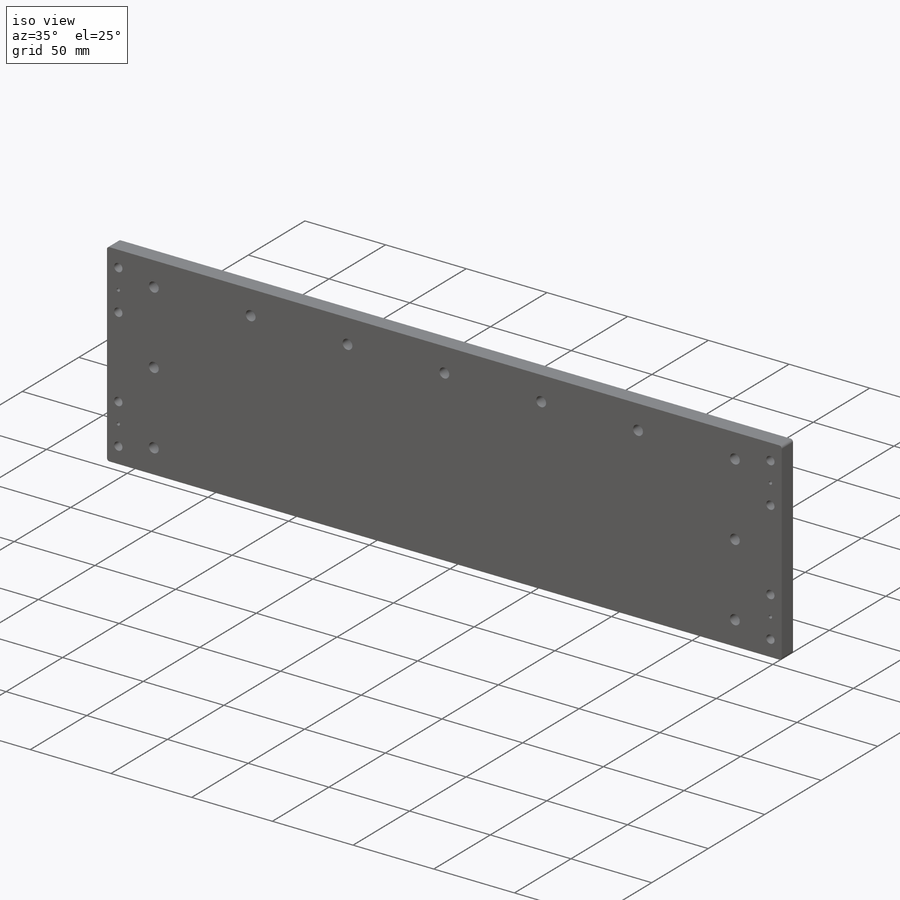
[diagram: iso view]
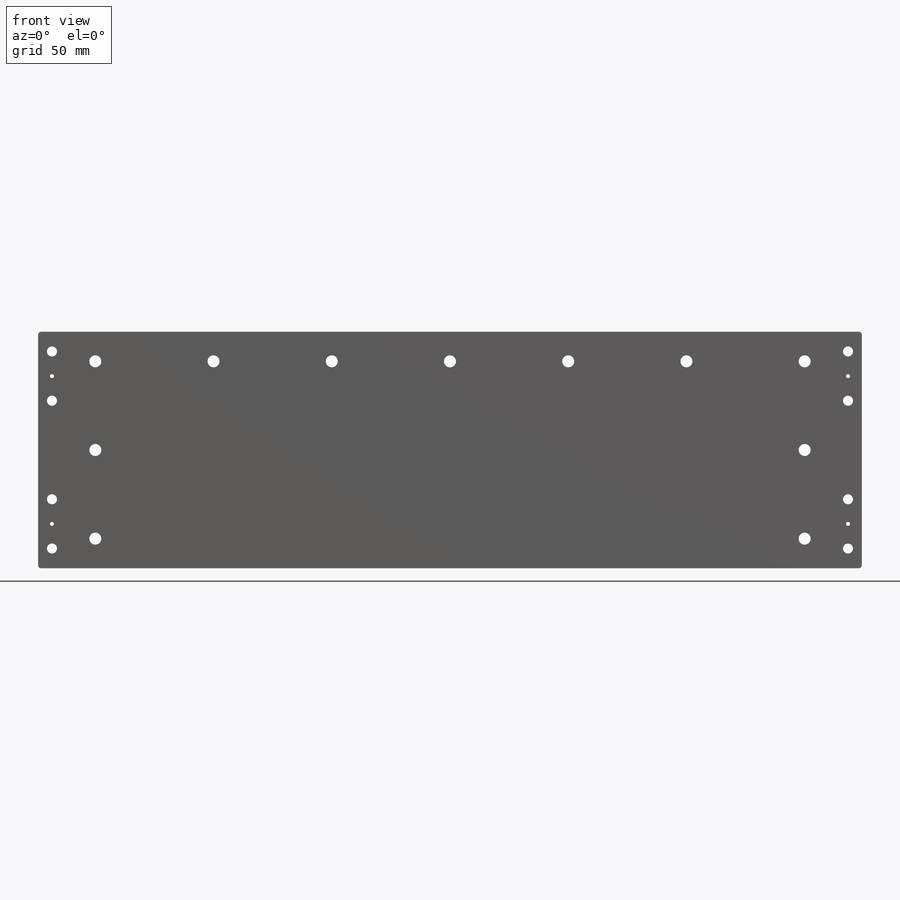
[diagram: front view]
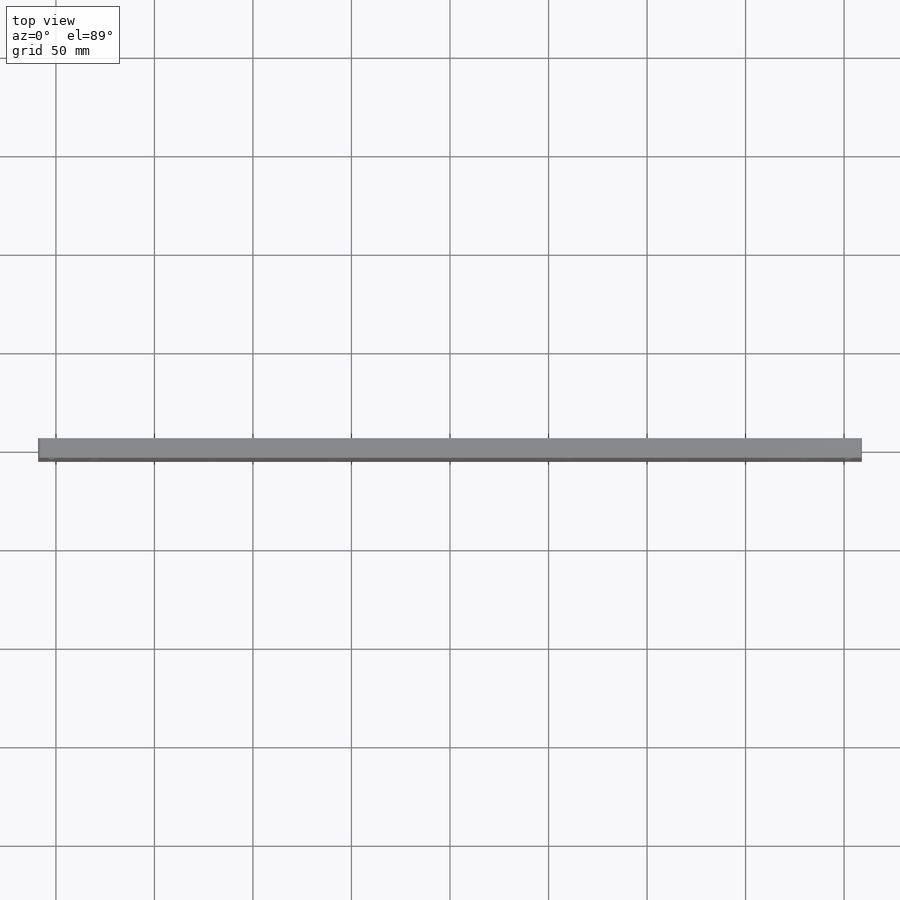
[diagram: top view]
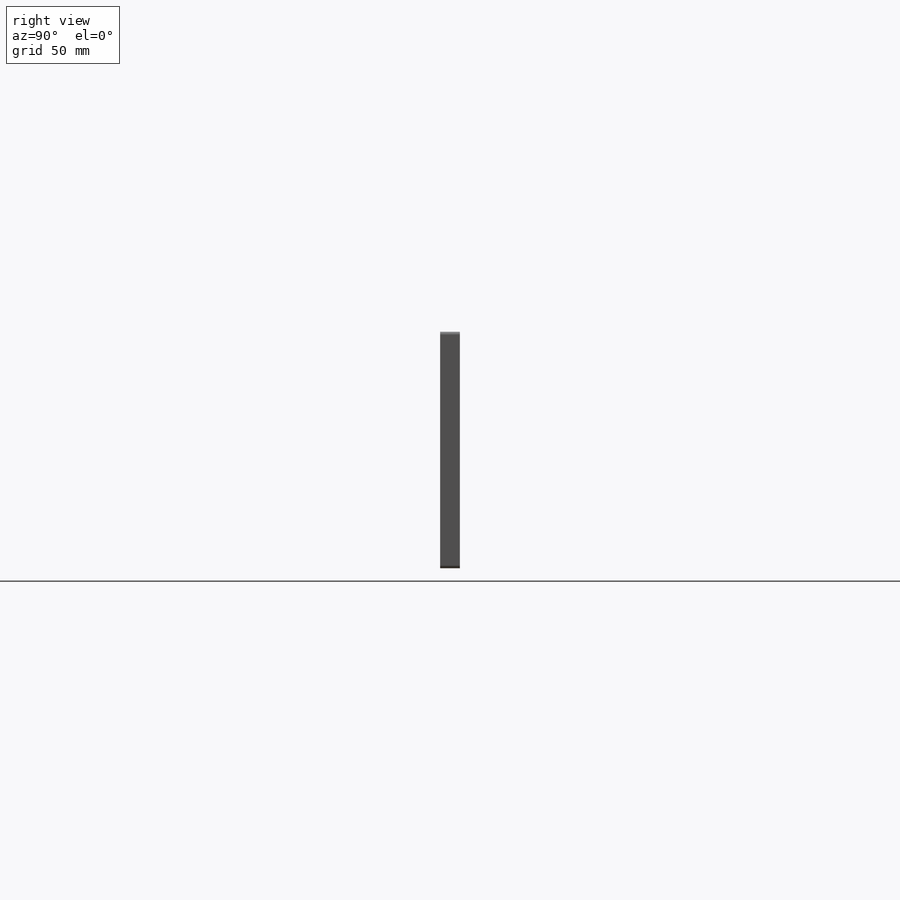
[diagram: right view]
SOLIDWORKS PART (.sldprt)
format: sldprt  version: not decoded by parser v0  size: 226,816 bytes
history: native  units: mm
features: sketch x3, cut_extrude x2, mirror x2, material x1, extrude x1, fillet x1 (+11 scaffold rows collapsed)
feature tree (21):
  scaffold x11  (default folders/planes/origin — collapsed)
  material  "Material <not specified>"
  sketch  "Sketch1"  dims[D1=418.0mm D2=120.0mm]
  extrude  "Boss-Extrude1"  Depth=10mm
  sketch  "Sketch3"  dims[c1.D5=6.1mm c1.D6=6.1mm c1.D7=6.1mm c1.D8=6.1mm c1.D9=6.1mm c1.D12=6.1mm c1.D13=6.1mm c1.D14=6.1mm c1.D11=6.1mm c1.D15=6.1mm c1.D19=6.1mm c1.D1=29.0mm c1.D2=15.0mm c1.D3=29.0mm c1.D4=15.0mm c1.D10=75.0mm c2.D11=75.0mm c2.D10=60.0mm c2.D16=60.0mm c2.D17=60.0mm c2.D18=60.0mm]
  cut_extrude  "Cut-Extrude2"  [1 undecoded]
  fillet  "Fillet1"  Radius=1.5mm
  sketch  "Sketch4"  dims[D2=5.1mm D6=5.1mm D7=2.0mm D1=7.0mm D3=10.0mm D4=22.5mm D5=35.0mm]
  cut_extrude  "Cut-Extrude3"  [1 undecoded]
  mirror  "Mirror1"
  mirror  "Mirror2"
decode coverage: 5 of 9 modeling features carry decoded parameters
note: 2 parameter values undecoded
note: suppression state not decoded; provenance and decode notes live in map.json
